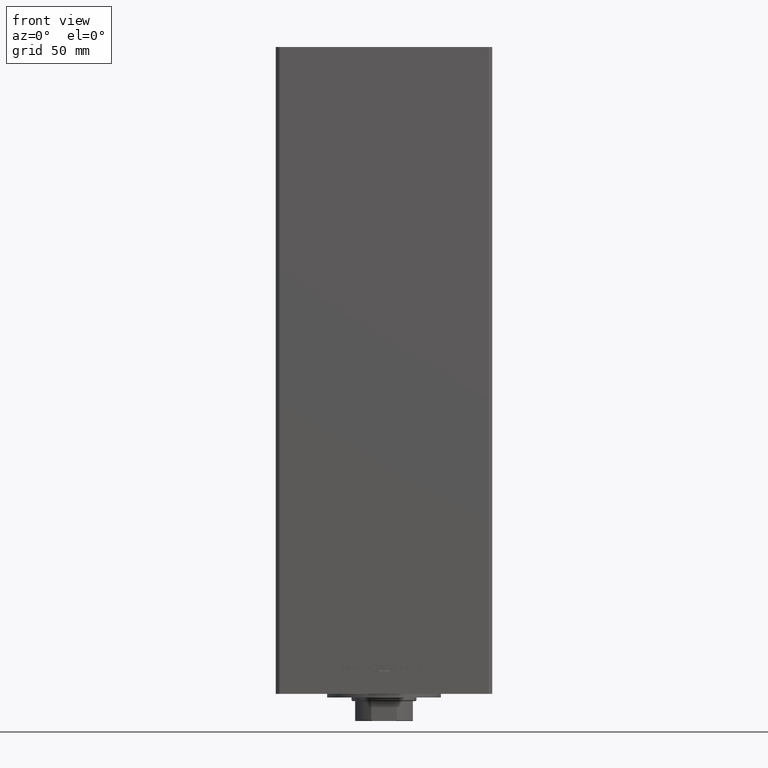
[diagram: clean part render]
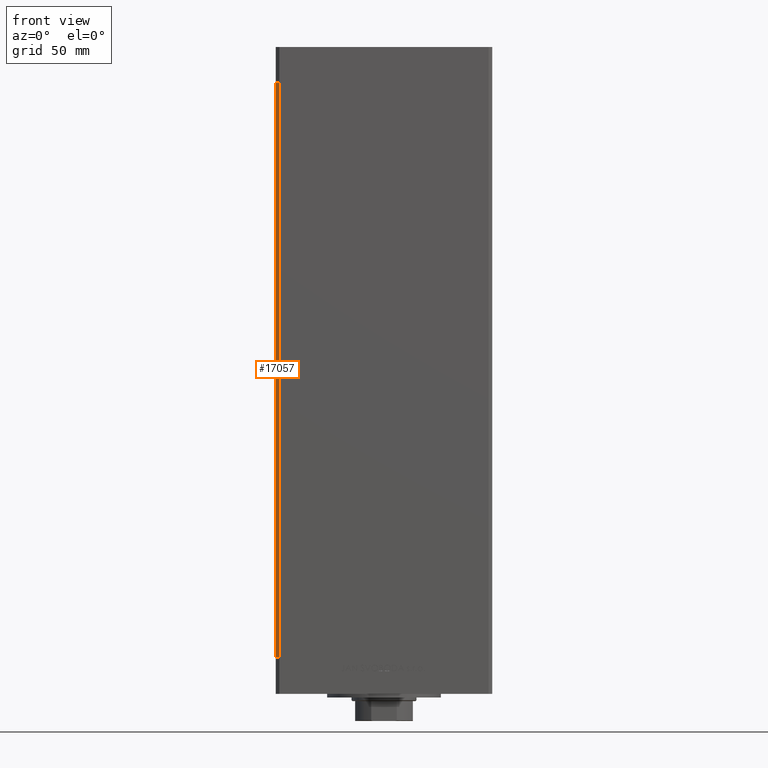
[diagram: same view with one face highlighted and labeled with its STEP entity id]
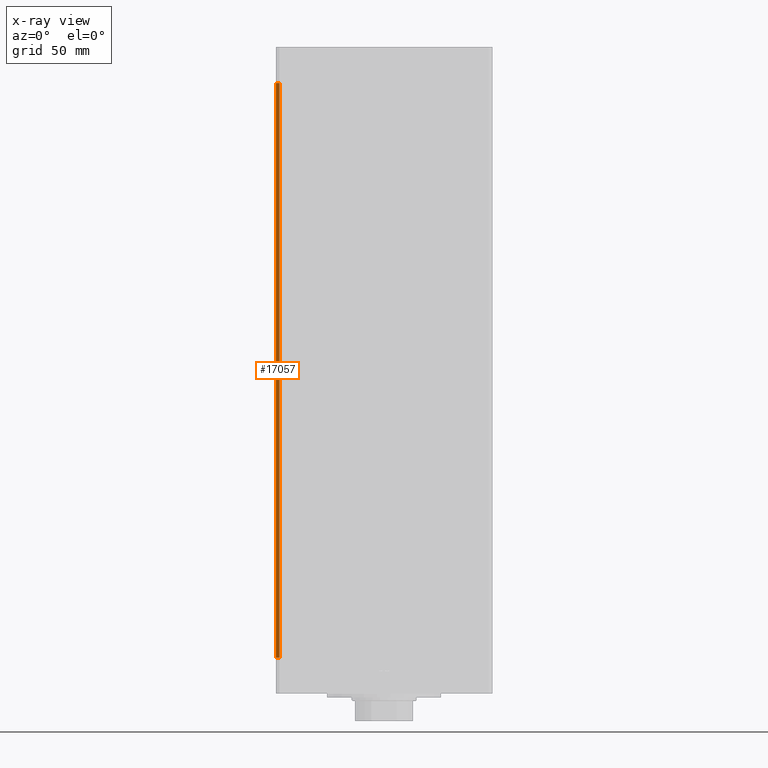
[diagram: x-ray of the same camera — body ghosted, the highlighted face saturated]
A machine part, front view. The second image highlights one B-rep face of the part: STEP entity #17057.
The next image is the same camera in x-ray: the body ghosted, the highlighted face saturated — about 0% of this face is hidden behind the body in this view.
In plain terms, the highlighted planar face has unit normal (0.7071, 0.7071, 0).
Its self-contained STEP definition (entity closure, byte-faithful):
#1272 = CARTESIAN_POINT ( 'NONE',  ( -59.99999999999998579, -49.00000000000000000, 318.5000000000000000 ) ) ;
#2167 = ORIENTED_EDGE ( 'NONE', *, *, #46297, .T. ) ;
#2605 = FACE_OUTER_BOUND ( 'NONE', #25771, .T. ) ;
#3350 = CARTESIAN_POINT ( 'NONE',  ( -59.99999999999998579, -49.00000000000000000, 318.5000000000000000 ) ) ;
#3948 = ORIENTED_EDGE ( 'NONE', *, *, #45694, .F. ) ;
#4381 = DIRECTION ( 'NONE',  ( 0.7071067811865474617, -0.7071067811865474617, 0.000000000000000000 ) ) ;
#6542 = VERTEX_POINT ( 'NONE', #1272 ) ;
#8038 = DIRECTION ( 'NONE',  ( 0.7071067811865474617, -0.7071067811865474617, 0.000000000000000000 ) ) ;
#8144 = CARTESIAN_POINT ( 'NONE',  ( -57.99999999999997868, -51.00000000000000711, 0.000000000000000000 ) ) ;
#10547 = DIRECTION ( 'NONE',  ( 0.7071067811865475727, 0.7071067811865475727, -0.000000000000000000 ) ) ;
#11148 = VERTEX_POINT ( 'NONE', #15642 ) ;
#11771 = CARTESIAN_POINT ( 'NONE',  ( -59.99999999999998579, -49.00000000000000000, 318.5000000000000000 ) ) ;
#12357 = VECTOR ( 'NONE', #8038, 1000.000000000000114 ) ;
#14774 = CARTESIAN_POINT ( 'NONE',  ( -57.99999999999997868, -51.00000000000000711, 318.5000000000000000 ) ) ;
#15642 = CARTESIAN_POINT ( 'NONE',  ( -59.99999999999998579, -49.00000000000000000, 0.000000000000000000 ) ) ;
#16974 = DIRECTION ( 'NONE',  ( -0.000000000000000000, -0.000000000000000000, -1.000000000000000000 ) ) ;
#17057 = ADVANCED_FACE ( 'NONE', ( #2605 ), #21988, .F. ) ;
#19773 = ORIENTED_EDGE ( 'NONE', *, *, #43093, .F. ) ;
#21094 = VECTOR ( 'NONE', #4381, 1000.000000000000114 ) ;
#21927 = CARTESIAN_POINT ( 'NONE',  ( -57.99999999999997868, -51.00000000000000711, 318.5000000000000000 ) ) ;
#21988 = PLANE ( 'NONE',  #48725 ) ;
#25771 = EDGE_LOOP ( 'NONE', ( #2167, #19773, #3948, #41715 ) ) ;
#27924 = LINE ( 'NONE', #43073, #42554 ) ;
#30503 = VECTOR ( 'NONE', #37094, 1000.000000000000000 ) ;
#32918 = DIRECTION ( 'NONE',  ( -0.7071067811865474617, 0.7071067811865474617, 0.000000000000000000 ) ) ;
#37094 = DIRECTION ( 'NONE',  ( -0.000000000000000000, -0.000000000000000000, -1.000000000000000000 ) ) ;
#38924 = LINE ( 'NONE', #43130, #21094 ) ;
#40810 = LINE ( 'NONE', #21927, #30503 ) ;
#41715 = ORIENTED_EDGE ( 'NONE', *, *, #46853, .T. ) ;
#42554 = VECTOR ( 'NONE', #16974, 1000.000000000000000 ) ;
#43073 = CARTESIAN_POINT ( 'NONE',  ( -59.99999999999998579, -49.00000000000000000, 318.5000000000000000 ) ) ;
#43093 = EDGE_CURVE ( 'NONE', #46536, #47207, #40810, .T. ) ;
#43130 = CARTESIAN_POINT ( 'NONE',  ( -59.99999999999998579, -49.00000000000000000, 0.000000000000000000 ) ) ;
#45694 = EDGE_CURVE ( 'NONE', #6542, #46536, #45817, .T. ) ;
#45817 = LINE ( 'NONE', #11771, #12357 ) ;
#46297 = EDGE_CURVE ( 'NONE', #11148, #47207, #38924, .T. ) ;
#46536 = VERTEX_POINT ( 'NONE', #14774 ) ;
#46853 = EDGE_CURVE ( 'NONE', #6542, #11148, #27924, .T. ) ;
#47207 = VERTEX_POINT ( 'NONE', #8144 ) ;
#48725 = AXIS2_PLACEMENT_3D ( 'NONE', #3350, #10547, #32918 ) ;